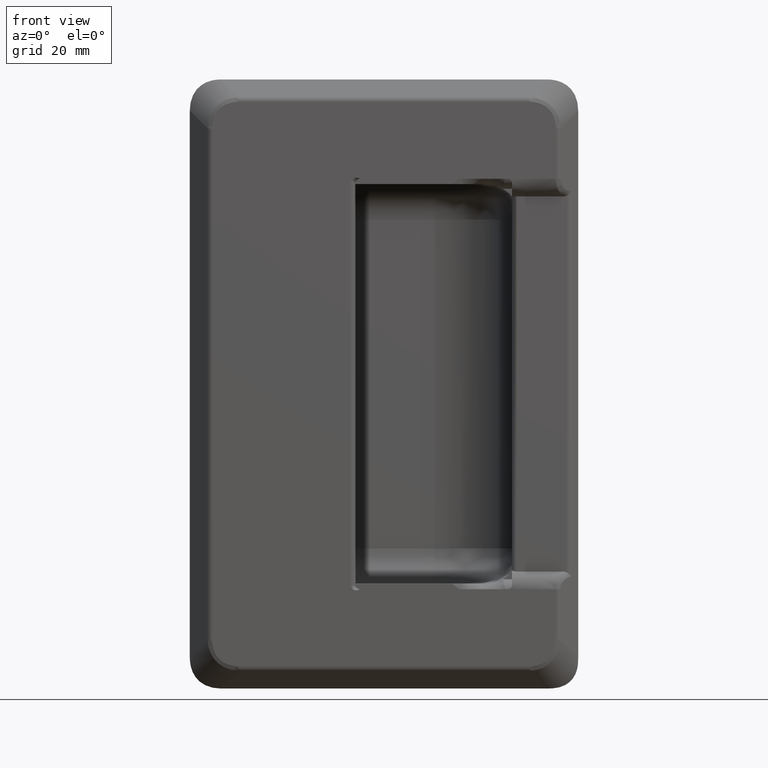
[diagram: clean part render]
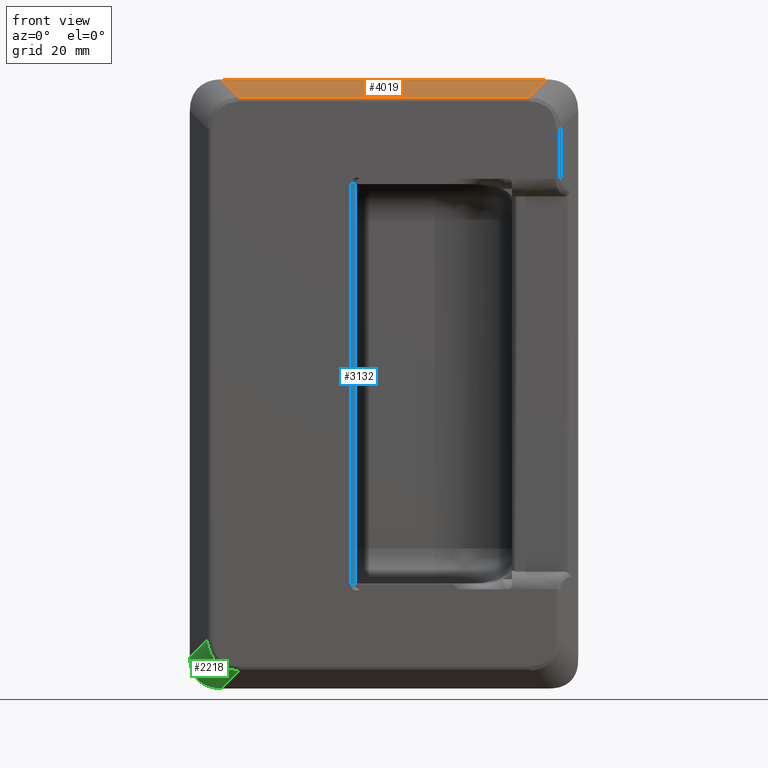
[diagram: same view with three faces highlighted in distinct colors, each labeled with its STEP entity id]
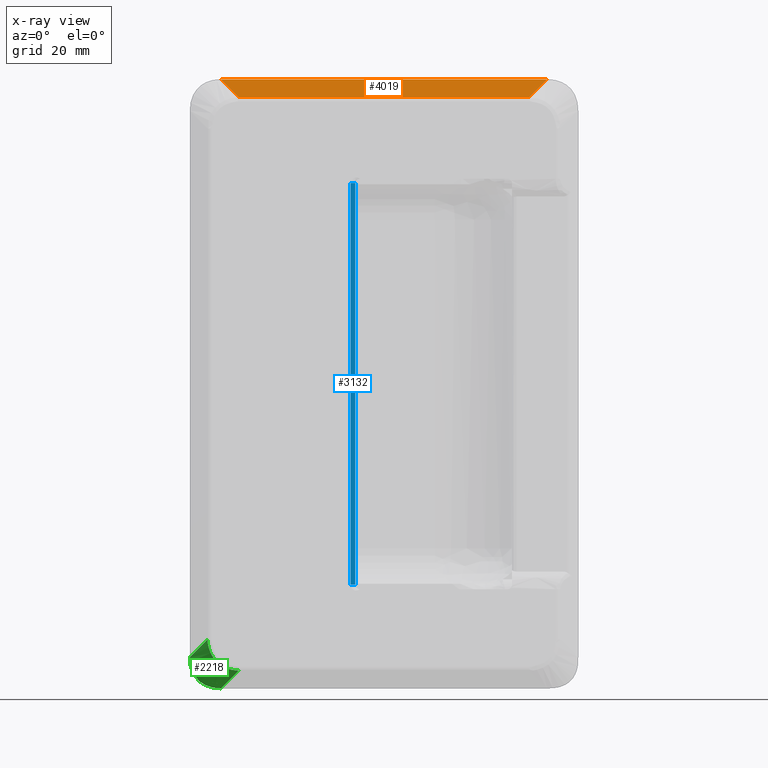
[diagram: x-ray of the same camera — body ghosted, the three highlighted faces saturated]
A machine part, front view with three faces highlighted in distinct colors.
The next image is the same camera in x-ray (body ghosted, the three faces saturated) — at least one of them is partly hidden behind the body in this view.
Their STEP definitions:

[orange] entity #4019 — the highlighted face is a freeform B-spline surface patch.
#1567=CARTESIAN_POINT('',(32.928272016531501,0.439339828220177,64.999339828010406));
#1568=VERTEX_POINT('',#1567);
#1664=CARTESIAN_POINT('',(-32.928272016177900,0.439339828220182,64.999339828028894));
#1665=VERTEX_POINT('',#1664);
#1682=CARTESIAN_POINT('',(-32.928272016177900,0.439339828220182,64.999339828028894));
#1683=CARTESIAN_POINT('',(32.928272016531501,0.439339828220177,64.999339828010406));
#1684=QUASI_UNIFORM_CURVE('',1,(#1682,#1683),.UNSPECIFIED.,.F.,.U.);
#1685=EDGE_CURVE('',#1665,#1568,#1684,.T.);
#1924=CARTESIAN_POINT('',(-36.928932187957749,4.440000000000000,68.999999999809802));
#1925=VERTEX_POINT('',#1924);
#2031=CARTESIAN_POINT('',(-36.928932187957749,4.440000000000000,68.999999999809802));
#2032=CARTESIAN_POINT('',(-32.928272016177900,0.439339828220182,64.999339828028894));
#2033=QUASI_UNIFORM_CURVE('',1,(#2031,#2032),.UNSPECIFIED.,.F.,.U.);
#2034=EDGE_CURVE('',#1925,#1665,#2033,.T.);
#2566=CARTESIAN_POINT('',(36.928932188311350,4.440000000000000,68.999999999789097));
#2567=VERTEX_POINT('',#2566);
#2568=CARTESIAN_POINT('',(32.928272016531501,0.439339828220177,64.999339828010406));
#2569=CARTESIAN_POINT('',(36.928932188311350,4.440000000000000,68.999999999789097));
#2570=QUASI_UNIFORM_CURVE('',1,(#2568,#2569),.UNSPECIFIED.,.F.,.U.);
#2571=EDGE_CURVE('',#1568,#2567,#2570,.T.);
#2821=CARTESIAN_POINT('',(-36.928932187957749,4.440000000000000,68.999999999809802));
#2822=CARTESIAN_POINT('',(36.928932188311350,4.440000000000000,68.999999999789097));
#2823=QUASI_UNIFORM_CURVE('',1,(#2821,#2822),.UNSPECIFIED.,.F.,.U.);
#2824=EDGE_CURVE('',#1925,#2567,#2823,.T.);
#4008=CARTESIAN_POINT('',(-40.618132370401518,0.239504945060924,64.799504944871785));
#4009=CARTESIAN_POINT('',(-40.618132370401518,4.639833166251319,69.199833166062177));
#4010=CARTESIAN_POINT('',(40.618134351777407,0.239504945072353,64.799504944860374));
#4011=CARTESIAN_POINT('',(40.618134351777407,4.639833166262747,69.199833166050752));
#4012=B_SPLINE_SURFACE_WITH_KNOTS('',1,1,((#4008,#4010),(#4009,#4011)),.UNSPECIFIED.,.F.,.F.,.U.,(2,2),(2,2),(0.0,6.223003849300532),(0.0,81.236266722178925),.UNSPECIFIED.);
#4013=ORIENTED_EDGE('',*,*,#2034,.T.);
#4014=ORIENTED_EDGE('',*,*,#1685,.T.);
#4015=ORIENTED_EDGE('',*,*,#2571,.T.);
#4016=ORIENTED_EDGE('',*,*,#2824,.F.);
#4017=EDGE_LOOP('',(#4013,#4014,#4015,#4016));
#4018=FACE_OUTER_BOUND('',#4017,.T.);
#4019=ADVANCED_FACE('',(#4018),#4012,.F.);

[blue] entity #3132 — the highlighted face is a freeform B-spline surface patch.
#3045=CARTESIAN_POINT('',(-6.500000000415899,1.050000000000000,45.499999999843503));
#3046=VERTEX_POINT('',#3045);
#3064=CARTESIAN_POINT('',(-7.550000000415890,0.0,45.499999999843503));
#3065=VERTEX_POINT('',#3064);
#3078=CARTESIAN_POINT('',(-7.550000000415890,0.0,45.499999999843503));
#3079=CARTESIAN_POINT('',(-7.378112520060901,-0.000329617144095,45.499999999843517));
#3080=CARTESIAN_POINT('',(-7.120766377572145,0.064677922867439,45.499999999843531));
#3081=CARTESIAN_POINT('',(-6.795191426419931,0.294015102102390,45.499999999843439));
#3082=CARTESIAN_POINT('',(-6.565715594934837,0.603458003174084,45.499999999843631));
#3083=CARTESIAN_POINT('',(-6.499760047327905,0.895330965470569,45.499999999843439));
#3084=CARTESIAN_POINT('',(-6.500000000415899,1.050000000000000,45.499999999843503));
#3085=B_SPLINE_CURVE_WITH_KNOTS('',3,(#3078,#3079,#3080,#3081,#3082,#3083,#3084),.UNSPECIFIED.,.F.,.U.,(4,1,1,1,4),(0.000000423178858,0.515485435705936,0.773226455825046,1.185575811589735,1.649506000095203),.UNSPECIFIED.);
#3086=EDGE_CURVE('',#3065,#3046,#3085,.T.);
#3091=CARTESIAN_POINT('',(-7.577485796139158,0.000359808775665,47.774999999844653));
#3092=CARTESIAN_POINT('',(-7.577485796139158,0.000359808775665,-47.831875000203482));
#3093=CARTESIAN_POINT('',(-6.421265949354429,-0.029916873448976,47.774999999844646));
#3094=CARTESIAN_POINT('',(-6.421265949354429,-0.029916873448976,-47.831875000203482));
#3095=CARTESIAN_POINT('',(-6.502599297732113,1.123836088855825,47.774999999844638));
#3096=CARTESIAN_POINT('',(-6.502599297732113,1.123836088855825,-47.831875000203475));
#3104=(BOUNDED_SURFACE()B_SPLINE_SURFACE(1,2,((#3091,#3093,#3095),(#3092,#3094,#3096)),.UNSPECIFIED.,.F.,.F.,.U.)B_SPLINE_SURFACE_WITH_KNOTS((2,2),(3,3),(0.0,95.606875000048120),(0.0,0.994518638381734),.UNSPECIFIED.)GEOMETRIC_REPRESENTATION_ITEM()RATIONAL_B_SPLINE_SURFACE(((1.0,0.670944221153821,0.996392652567128),(1.0,0.670944221153821,0.996392652567128)))REPRESENTATION_ITEM('')SURFACE());
#3105=CARTESIAN_POINT('',(-7.550000000415890,0.0,-45.500000000202313));
#3106=VERTEX_POINT('',#3105);
#3107=CARTESIAN_POINT('',(-6.500000000415899,1.050000000000000,-45.500000000202313));
#3108=VERTEX_POINT('',#3107);
#3109=CARTESIAN_POINT('',(-7.550000000415890,0.0,-45.500000000202313));
#3110=CARTESIAN_POINT('',(-7.378112874825837,-0.000327948363661,-45.500000000202220));
#3111=CARTESIAN_POINT('',(-7.120768338679537,0.064681627832664,-45.500000000202071));
#3112=CARTESIAN_POINT('',(-6.795195445874743,0.294019349678839,-45.500000000202007));
#3113=CARTESIAN_POINT('',(-6.565718070421013,0.603462852376868,-45.500000000202313));
#3114=CARTESIAN_POINT('',(-6.499757833097734,0.895330549408861,-45.500000000202107));
#3115=CARTESIAN_POINT('',(-6.500000000415899,1.050000000000000,-45.500000000202313));
#3116=B_SPLINE_CURVE_WITH_KNOTS('',3,(#3109,#3110,#3111,#3112,#3113,#3114,#3115),.UNSPECIFIED.,.F.,.U.,(4,1,1,1,4),(0.000000370620727,0.515484011176867,0.773224374624730,1.185572644246521,1.649501577470124),.UNSPECIFIED.);
#3117=EDGE_CURVE('',#3106,#3108,#3116,.T.);
#3118=ORIENTED_EDGE('',*,*,#3117,.T.);
#3119=CARTESIAN_POINT('',(-6.500000000415899,1.050000000000000,45.499999999843503));
#3120=CARTESIAN_POINT('',(-6.500000000415899,1.050000000000000,-45.500000000202313));
#3121=QUASI_UNIFORM_CURVE('',1,(#3119,#3120),.UNSPECIFIED.,.F.,.U.);
#3122=EDGE_CURVE('',#3046,#3108,#3121,.T.);
#3123=ORIENTED_EDGE('',*,*,#3122,.F.);
#3124=ORIENTED_EDGE('',*,*,#3086,.F.);
#3125=CARTESIAN_POINT('',(-7.550000000415890,0.0,-45.500000000202313));
#3126=CARTESIAN_POINT('',(-7.550000000415890,0.0,45.499999999843503));
#3127=QUASI_UNIFORM_CURVE('',1,(#3125,#3126),.UNSPECIFIED.,.F.,.U.);
#3128=EDGE_CURVE('',#3106,#3065,#3127,.T.);
#3129=ORIENTED_EDGE('',*,*,#3128,.F.);
#3130=EDGE_LOOP('',(#3118,#3123,#3124,#3129));
#3131=FACE_OUTER_BOUND('',#3130,.T.);
#3132=ADVANCED_FACE('',(#3131),#3104,.T.);

[green] entity #2218 — the highlighted face is a freeform B-spline surface patch.
#1305=CARTESIAN_POINT('',(-32.928272016179953,0.439339828220188,-64.999339828408395));
#1306=VERTEX_POINT('',#1305);
#1449=CARTESIAN_POINT('',(-39.999339828045400,0.439339828220177,-57.928272016542898));
#1450=VERTEX_POINT('',#1449);
#1459=CARTESIAN_POINT('',(-32.928272016179967,0.439339828220176,-64.999339828408424));
#1460=CARTESIAN_POINT('',(-39.645786437452159,0.085786437626905,-64.645786437815119));
#1461=CARTESIAN_POINT('',(-39.999339828045393,0.439339828220182,-57.928272016542898));
#1469=(BOUNDED_CURVE()B_SPLINE_CURVE(2,(#1459,#1460,#1461),.UNSPECIFIED.,.F.,.U.)CURVE()GEOMETRIC_REPRESENTATION_ITEM()QUASI_UNIFORM_CURVE()RATIONAL_B_SPLINE_CURVE((1.0,0.866025403784438,1.0))REPRESENTATION_ITEM(''));
#1470=EDGE_CURVE('',#1306,#1450,#1469,.T.);
#2112=CARTESIAN_POINT('',(-36.928932187959703,4.440000000000000,-69.000000000188209));
#2113=VERTEX_POINT('',#2112);
#2119=CARTESIAN_POINT('',(-43.999999999825199,4.440000000000000,-61.928932188322797));
#2120=VERTEX_POINT('',#2119);
#2121=CARTESIAN_POINT('',(-36.928932187959617,4.440000000000018,-69.000000000188280));
#2122=CARTESIAN_POINT('',(-43.999999999825206,4.440000000000008,-69.000000000188379));
#2123=CARTESIAN_POINT('',(-43.999999999825199,4.439999999999995,-61.928932188322797));
#2131=(BOUNDED_CURVE()B_SPLINE_CURVE(2,(#2121,#2122,#2123),.UNSPECIFIED.,.F.,.U.)CURVE()GEOMETRIC_REPRESENTATION_ITEM()QUASI_UNIFORM_CURVE()RATIONAL_B_SPLINE_CURVE((1.0,0.866025403784436,1.0))REPRESENTATION_ITEM(''));
#2132=EDGE_CURVE('',#2113,#2120,#2131,.T.);
#2190=CARTESIAN_POINT('',(-40.043321187308820,0.496781366956724,-57.444757255853602));
#2191=CARTESIAN_POINT('',(-45.395791363815228,5.849251543463138,-62.797227432360017));
#2192=CARTESIAN_POINT('',(-37.641463328317329,-2.298066846878585,-62.641463328680388));
#2193=CARTESIAN_POINT('',(-42.993933504823744,3.054403329627831,-67.993933505186803));
#2194=CARTESIAN_POINT('',(-32.444757255490543,0.496781366956721,-65.043321187671850));
#2195=CARTESIAN_POINT('',(-37.797227431996959,5.849251543463131,-70.395791364178280));
#2203=(BOUNDED_SURFACE()B_SPLINE_SURFACE(1,2,((#2190,#2192,#2194),(#2191,#2193,#2195)),.UNSPECIFIED.,.F.,.F.,.U.)B_SPLINE_SURFACE_WITH_KNOTS((2,2),(3,3),(0.0,9.270750291706273),(0.0,11.658936783443441),.UNSPECIFIED.)GEOMETRIC_REPRESENTATION_ITEM()RATIONAL_B_SPLINE_SURFACE(((1.0,0.843391445812886,1.0),(1.0,0.843391445812886,1.0)))REPRESENTATION_ITEM('')SURFACE());
#2204=CARTESIAN_POINT('',(-32.928272016179953,0.439339828220188,-64.999339828408395));
#2205=CARTESIAN_POINT('',(-36.928932187959703,4.440000000000000,-69.000000000188209));
#2206=QUASI_UNIFORM_CURVE('',1,(#2204,#2205),.UNSPECIFIED.,.F.,.U.);
#2207=EDGE_CURVE('',#1306,#2113,#2206,.T.);
#2208=ORIENTED_EDGE('',*,*,#2207,.F.);
#2209=ORIENTED_EDGE('',*,*,#1470,.T.);
#2210=CARTESIAN_POINT('',(-43.999999999825199,4.440000000000000,-61.928932188322797));
#2211=CARTESIAN_POINT('',(-39.999339828045400,0.439339828220177,-57.928272016542898));
#2212=QUASI_UNIFORM_CURVE('',1,(#2210,#2211),.UNSPECIFIED.,.F.,.U.);
#2213=EDGE_CURVE('',#2120,#1450,#2212,.T.);
#2214=ORIENTED_EDGE('',*,*,#2213,.F.);
#2215=ORIENTED_EDGE('',*,*,#2132,.F.);
#2216=EDGE_LOOP('',(#2208,#2209,#2214,#2215));
#2217=FACE_OUTER_BOUND('',#2216,.T.);
#2218=ADVANCED_FACE('',(#2217),#2203,.T.);